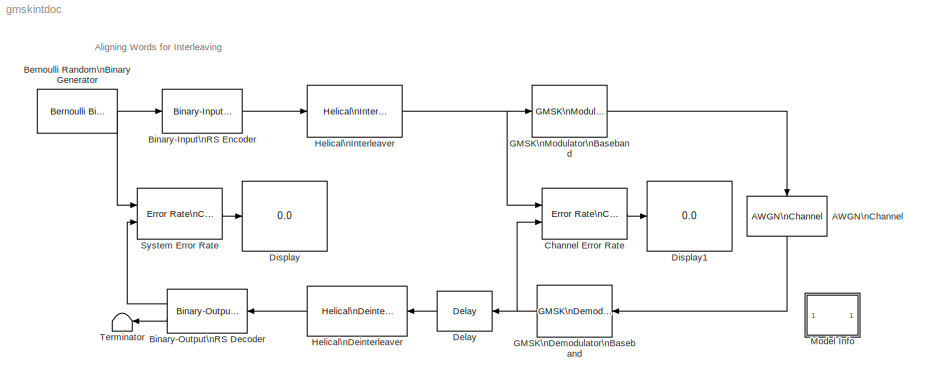
MODEL gmskintdoc
KIND model
CONFIG AbsTol = auto
CONFIG FixedStep = auto
CONFIG MaxStep = auto
CONFIG MinStep = auto
CONFIG RelTol = 1e-3
CONFIG Solver = FixedStepDiscrete
CONFIG SolverMode = Auto
CONFIG StartTime = 0.0
CONFIG StopTime = 2000.0
BLOCK [Reference] AWGN\nChannel  REF=commchan2/AWGN\nChannel
  EsNodB = 50
  Ports = [1, 1]
  Ps = 1
  SNRdB = -6
  SourceBlock = commchan2/AWGN\nChannel
  SourceType = AWGN Channel
  Tsym = 12
  noiseMode = Signal to noise ratio  (SNR)
  seed = 18233
  variance = 1
BLOCK [Reference] Bernoulli Random\nBinary Generator  REF=commrandsrc2/Bernoulli Binary\nGenerator
  P = .5
  Ports = [0, 1]
  SourceBlock = commrandsrc2/Bernoulli Binary\nGenerator
  SourceType = Bernoulli Binary Generator
  Ts = .1
  frameBased = on
  orient = off
  sampPerFrame = 15
  seed = 0
BLOCK [Reference] Binary-Input\nRS Encoder  REF=commblkcod2/Binary-Input\nRS Encoder
  Ports = [1, 1]
  SourceBlock = commblkcod2/Binary-Input\nRS Encoder
  SourceType = Binary-Input RS Encoder
  genPoly = rsgenpoly(7,3)
  k = 5
  n = 7
  primPoly = [1 0 1 1]
  specGenPoly = off
  specPrimPoly = off
BLOCK [Reference] Binary-Output\nRS Decoder  REF=commblkcod2/Binary-Output\nRS Decoder
  Ports = [1, 2]
  SourceBlock = commblkcod2/Binary-Output\nRS Decoder
  SourceType = Binary-Output RS Decoder
  genPoly = rsgenpoly(7,3)
  k = 5
  n = 7
  primPoly = [1 0 1 1]
  showNumErr = on
  specGenPoly = off
  specPrimPoly = off
BLOCK [Reference] Channel Error Rate  REF=commsink2/Error Rate\nCalculation
  N = 16
  PMode = Port
  Ports = [2, 1]
  RsMode2 = off
  SourceBlock = commsink2/Error Rate\nCalculation
  SourceType = Error Rate Calculation
  WsName = ErrorVec
  cp_mode = Entire frame
  maxBits = 1000
  numErr = 100
  st_delay = 0
  stop = off
  subframe = []
BLOCK [Reference] Delay  REF=dspsigops/Delay
  Ports = [1, 1]
  SourceBlock = dspsigops/Delay
  SourceType = Delay
  delay = 5
  dif_ic_for_ch = off
  dif_ic_for_dly = off
  dly_unit = Samples
  ic = 0
  ic_detail = off
  reset_popup = None
BLOCK [Display] Display
  Decimation = 1
  Ports = [1]
BLOCK [Display] Display1
  Decimation = 1
  Ports = [1]
BLOCK [Reference] GMSK\nDemodulator\nBaseband  REF=commdigbbndcpm2/GMSK\nDemodulator\nBaseband
  BT = .3
  OutputType = Bit
  Ports = [1, 1]
  SourceBlock = commdigbbndcpm2/GMSK\nDemodulator\nBaseband
  SourceType = GMSK Demodulator Baseband
  phaseOffset = 0
  preHistory = 1
  pulseLength = 3
  samplesPerSymbol = 16
  traceBack = 16
BLOCK [Reference] GMSK\nModulator\nBaseband  REF=commdigbbndcpm2/GMSK\nModulator\nBaseband
  BT = .3
  Ports = [1, 1]
  SourceBlock = commdigbbndcpm2/GMSK\nModulator\nBaseband
  SourceType = GMSK Modulator Baseband
  inputType = Bit
  phaseOffset = 0
  preHistory = 1
  pulseLength = 3
  samplesPerSymbol = 16
BLOCK [Reference] Helical\nDeinterleaver  REF=commcnvintrlv2/Helical\nDeinterleaver
  C = 7
  N = 3
  Ports = [1, 1]
  SourceBlock = commcnvintrlv2/Helical\nDeinterleaver
  SourceType = Helical Deinterleaver
  ic = 0
  s = 1
BLOCK [Reference] Helical\nInterleaver  REF=commcnvintrlv2/Helical\nInterleaver
  C = 7
  N = 3
  Ports = [1, 1]
  SourceBlock = commcnvintrlv2/Helical\nInterleaver
  SourceType = Helical Interleaver
  ic = 0
  s = 1
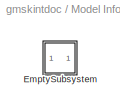
BLOCK [SubSystem] Model Info
  CopyFcn = slcm CopyBlock;
  DeleteFcn = slcm Cancel;
  InitFcn = slcm('UpdateAllCMBlocksInThisModelInit')
  LoadFcn = slcm LoadBlock;
  MaskCallbackString = ||||||||||||||||||||||||||||||
  MaskDescription = This block allows revision control information to be displayed within the model.
  MaskDisplay = text(str2num(LeftAlignmentValue), 0.5, MaskDisplayString, 'HorizontalAlignment', HorizontalTextAlignment)\n
  MaskEnableString = on,on,on,on,on,on,on,on,on,on,on,on,on,on,on,on,on,on,on,on,on,on,on,on,on,on,on,on,on,on,on
  MaskIconFrame = on
  MaskIconOpaque = on
  MaskIconRotate = none
  MaskIconUnits = normalized
  MaskPromptString = InitialSaveTempField|InitialBlockCM|BlockCM|Frame|SaveTempField|DisplayStringWithTags|MaskDisplayString|HorizontalTextAlignment|LeftAlignmentValue|SourceBlockDiagram|TagMaxNumber|CMTag1|CMTag2|CMTag3|CMTag4|CMTag5|CMTag6|CMTag7|CMTag8|CMTag9|CMTag10|CMTag11|CMTag12|CMTag13|CMTag14|CMTag15|CMTag16|CMTag17|CMTag18|CMTag19|CMTag20
  MaskSelfModifiable = on
  MaskStyleString = edit,edit,edit,edit,edit,edit,edit,edit,edit,edit,edit,edit,edit,edit,edit,edit,edit,edit,edit,edit,edit,edit,edit,edit,edit,edit,edit,edit,edit,edit,edit
  MaskToolTipString = on,on,on,on,on,on,on,on,on,on,on,on,on,on,on,on,on,on,on,on,on,on,on,on,on,on,on,on,on,on,on
  MaskTunableValueString = on,on,on,on,on,on,on,on,on,on,on,on,on,on,on,on,on,on,on,on,on,on,on,on,on,on,on,on,on,on,on
  MaskType = CMBlock
  MaskValueString = |none|none|on||Info|Info|Center|0.5|gmskintdoc|20||||||||||||||||||||
  MaskVarAliasString = ,,,,,,,,,,,,,,,,,,,,,,,,,,,,,,
  MaskVariables = InitialSaveTempField=&1;InitialBlockCM=&2;BlockCM=&3;Frame=&4;SaveTempField=&5;DisplayStringWithTags=&6;MaskDisplayString=&7;HorizontalTextAlignment=&8;LeftAlignmentValue=&9;SourceBlockDiagram=&10;TagMaxNumber=@11;CMTag1=&12;CMTag2=&13;CMTag3=&14;CMTag4=&15;CMTag5=&16;CMTag6=&17;CMTag7=&18;CMTag8=&19;CMTag9=&20;CMTag10=&21;CMTag11=&22;CMTag12=&23;CMTag13=&24;CMTag14=&25;CMTag15=&26;CMTag16=&27;CMT...<+45ch>
  MaskVisibilityString = off,off,off,off,off,off,off,off,off,off,off,off,off,off,off,off,off,off,off,off,off,off,off,off,off,off,off,off,off,off,off
  NameChangeFcn = slcm Rename;
  OpenFcn = commdemohelp;
  Ports = []
  PostSaveFcn = slcm('UpdateAllCMBlocksInThisModel')
  TreatAsAtomicUnit = off
BLOCK [SubSystem] Model Info/EmptySubsystem
  Ports = []
  TreatAsAtomicUnit = off
BLOCK [Reference] System Error Rate  REF=commsink2/Error Rate\nCalculation
  N = 15*3
  PMode = Port
  Ports = [2, 1]
  RsMode2 = off
  SourceBlock = commsink2/Error Rate\nCalculation
  SourceType = Error Rate Calculation
  WsName = ErrorVec
  cp_mode = Entire frame
  maxBits = 1000
  numErr = 100
  st_delay = 0
  stop = off
  subframe = []
BLOCK [Terminator] Terminator
ANNOTATION (root): Aligning Words for Interleaving
LINE AWGN\nChannel:1 -> GMSK\nDemodulator\nBaseband:1
NET Bernoulli Random\nBinary Generator:1 -> Binary-Input\nRS Encoder:1, System Error Rate:1
LINE Binary-Input\nRS Encoder:1 -> Helical\nInterleaver:1
LINE Binary-Output\nRS Decoder:1 -> System Error Rate:2
LINE Binary-Output\nRS Decoder:2 -> Terminator:1
LINE Channel Error Rate:1 -> Display1:1
LINE Delay:1 -> Helical\nDeinterleaver:1
NET GMSK\nDemodulator\nBaseband:1 -> Channel Error Rate:2, Delay:1
LINE GMSK\nModulator\nBaseband:1 -> AWGN\nChannel:1
LINE Helical\nDeinterleaver:1 -> Binary-Output\nRS Decoder:1
NET Helical\nInterleaver:1 -> Channel Error Rate:1, GMSK\nModulator\nBaseband:1
LINE System Error Rate:1 -> Display:1
note: NET lines group one-source signal fan-out (src -> all destinations, sorted); 1:1 wires keep LINE
